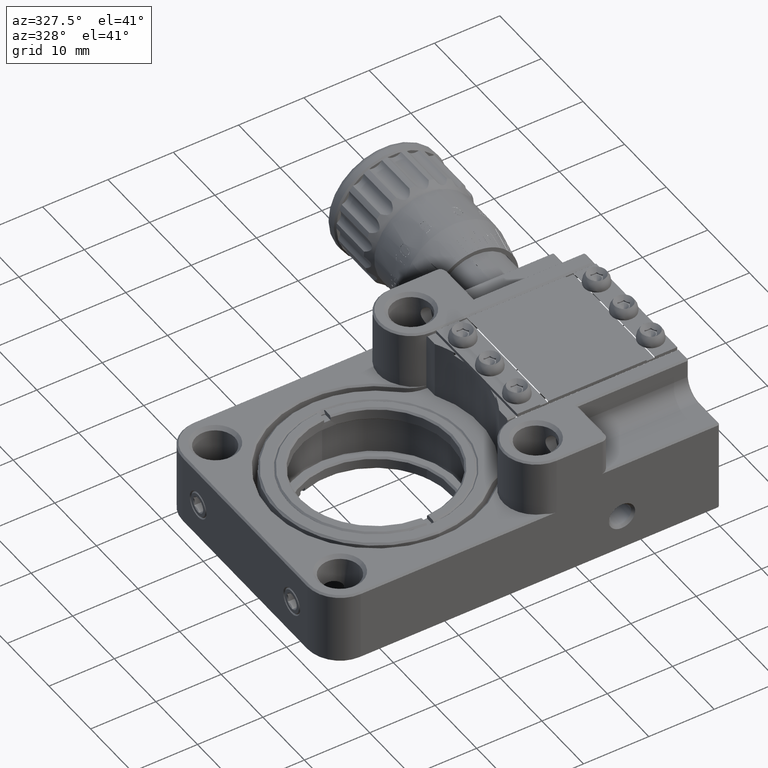
[diagram: clean part render]
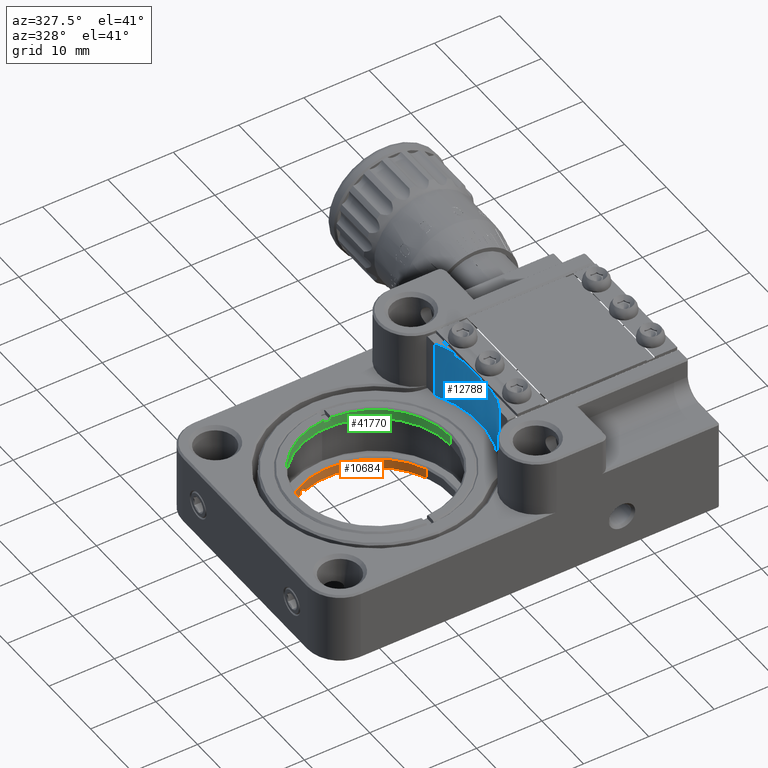
[diagram: same view with three faces highlighted in distinct colors, each labeled with its STEP entity id]
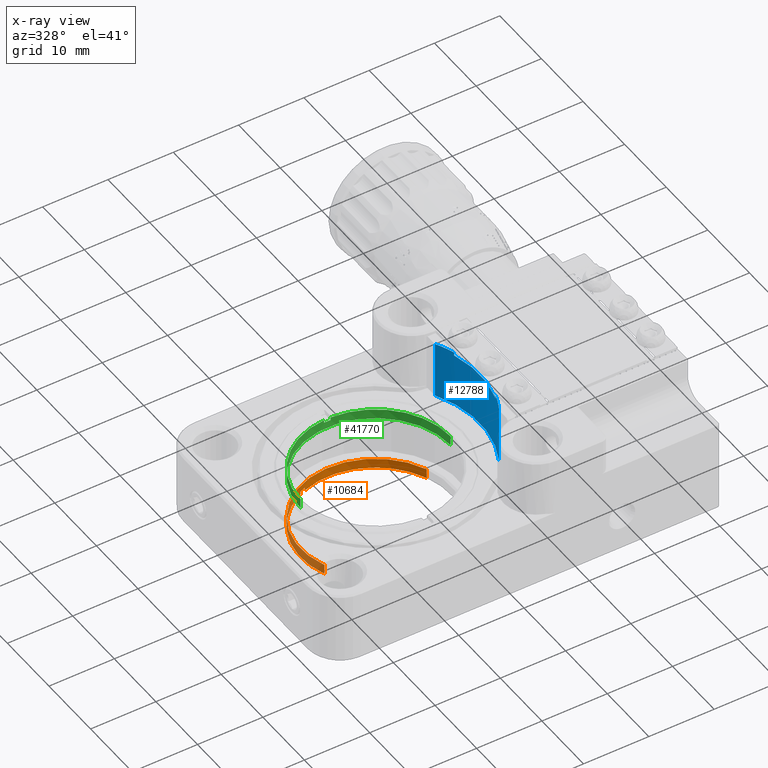
[diagram: x-ray of the same camera — body ghosted, the three highlighted faces saturated]
A machine part, auxiliary view with three faces highlighted in distinct colors.
The next image is the same camera in x-ray (body ghosted, the three faces saturated) — at least one of them is partly hidden behind the body in this view.
Their STEP definitions:

[orange] entity #10684 — the highlighted cylindrical surface (partial cylindrical patch) has radius 11.5045 mm, axis along (-0, 0, 1).
#2526 = DIRECTION ( 'NONE',  ( -0.000000000000000000, 0.000000000000000000, 1.000000000000000000 ) ) ;
#4275 = EDGE_CURVE ( 'NONE', #15417, #29431, #29823, .T. ) ;
#4463 = CIRCLE ( 'NONE', #37035, 11.50450000000014938 ) ;
#5706 = ORIENTED_EDGE ( 'NONE', *, *, #24415, .T. ) ;
#5871 = CIRCLE ( 'NONE', #43959, 11.50450000000014938 ) ;
#6357 = CARTESIAN_POINT ( 'NONE',  ( -1.230980756753038060E-15, 3.298665368134617755E-15, -4.668755170104023300 ) ) ;
#7726 = CARTESIAN_POINT ( 'NONE',  ( -4.843364236585100180, 10.43529314977640254, -4.218755170104023122 ) ) ;
#7945 = AXIS2_PLACEMENT_3D ( 'NONE', #6357, #13159, #46378 ) ;
#9455 = DIRECTION ( 'NONE',  ( 0.000000000000000000, 0.000000000000000000, -1.000000000000000000 ) ) ;
#9596 = LINE ( 'NONE', #33741, #18766 ) ;
#10684 = ADVANCED_FACE ( 'NONE', ( #14794 ), #15927, .F. ) ;
#11052 = CARTESIAN_POINT ( 'NONE',  ( 10.63593166459730988, 4.385256876856787223, -4.918755170104023300 ) ) ;
#11697 = DIRECTION ( 'NONE',  ( 0.000000000000000000, -0.000000000000000000, -1.000000000000000000 ) ) ;
#12628 = LINE ( 'NONE', #11052, #43101 ) ;
#12933 = CARTESIAN_POINT ( 'NONE',  ( -1.230980756753038060E-15, 3.298665368134617755E-15, -4.668755170104023300 ) ) ;
#13159 = DIRECTION ( 'NONE',  ( 0.000000000000000000, 0.000000000000000000, -1.000000000000000000 ) ) ;
#13316 = AXIS2_PLACEMENT_3D ( 'NONE', #43708, #21717, #47330 ) ;
#14009 = CARTESIAN_POINT ( 'NONE',  ( -3.918862375174605450, 10.81647067829632114, -4.918755170104023300 ) ) ;
#14754 = ORIENTED_EDGE ( 'NONE', *, *, #24070, .T. ) ;
#14794 = FACE_OUTER_BOUND ( 'NONE', #32754, .T. ) ;
#15417 = VERTEX_POINT ( 'NONE', #33582 ) ;
#15573 = DIRECTION ( 'NONE',  ( -0.9245018614105066090, -0.3811775285198597540, 0.000000000000000000 ) ) ;
#15731 = DIRECTION ( 'NONE',  ( 0.000000000000000000, 0.000000000000000000, -1.000000000000000000 ) ) ;
#15927 = CYLINDRICAL_SURFACE ( 'NONE', #25337, 11.50450000000014938 ) ;
#16379 = CIRCLE ( 'NONE', #13316, 11.50450000000014938 ) ;
#16454 = ORIENTED_EDGE ( 'NONE', *, *, #47049, .T. ) ;
#17765 = LINE ( 'NONE', #38456, #33911 ) ;
#18412 = CARTESIAN_POINT ( 'NONE',  ( 10.63593166459717132, 4.385256876856730379, -4.668755170104023300 ) ) ;
#18766 = VECTOR ( 'NONE', #11697, 1000.000000000000000 ) ;
#18903 = CARTESIAN_POINT ( 'NONE',  ( -10.63593166459731343, -4.385256876856780117, -4.668755170104023300 ) ) ;
#19613 = CARTESIAN_POINT ( 'NONE',  ( -1.230980756753038060E-15, 3.298665368134617755E-15, -4.218755170104023122 ) ) ;
#19768 = VERTEX_POINT ( 'NONE', #42944 ) ;
#19812 = ORIENTED_EDGE ( 'NONE', *, *, #42254, .F. ) ;
#21216 = VECTOR ( 'NONE', #43390, 1000.000000000000000 ) ;
#21717 = DIRECTION ( 'NONE',  ( -0.000000000000000000, -0.000000000000000000, 1.000000000000000000 ) ) ;
#21953 = EDGE_CURVE ( 'NONE', #26276, #25402, #36096, .T. ) ;
#23044 = ORIENTED_EDGE ( 'NONE', *, *, #39699, .T. ) ;
#24070 = EDGE_CURVE ( 'NONE', #15417, #42835, #5871, .T. ) ;
#24415 = EDGE_CURVE ( 'NONE', #42835, #19768, #12628, .T. ) ;
#25337 = AXIS2_PLACEMENT_3D ( 'NONE', #35742, #2526, #39229 ) ;
#25402 = VERTEX_POINT ( 'NONE', #26257 ) ;
#26257 = CARTESIAN_POINT ( 'NONE',  ( -4.843364236585100180, 10.43529314977640254, -4.668755170104024188 ) ) ;
#26276 = VERTEX_POINT ( 'NONE', #18903 ) ;
#28588 = ORIENTED_EDGE ( 'NONE', *, *, #45503, .F. ) ;
#29431 = VERTEX_POINT ( 'NONE', #31296 ) ;
#29823 = LINE ( 'NONE', #14009, #21216 ) ;
#30976 = DIRECTION ( 'NONE',  ( -0.9245018614105066090, -0.3811775285198597540, 0.000000000000000000 ) ) ;
#31069 = DIRECTION ( 'NONE',  ( -0.000000000000000000, 0.000000000000000000, 1.000000000000000000 ) ) ;
#31296 = CARTESIAN_POINT ( 'NONE',  ( -3.918862375174605450, 10.81647067829632114, -4.218755170104023122 ) ) ;
#31466 = CARTESIAN_POINT ( 'NONE',  ( -10.63593166459731343, -4.385256876856778341, -3.168755170104025076 ) ) ;
#32748 = DIRECTION ( 'NONE',  ( -0.000000000000000000, 0.000000000000000000, 1.000000000000000000 ) ) ;
#32754 = EDGE_LOOP ( 'NONE', ( #19812, #33827, #28588, #23044, #42032, #14754, #5706, #16454 ) ) ;
#33582 = CARTESIAN_POINT ( 'NONE',  ( -3.918862375174605450, 10.81647067829632114, -4.668755170104023300 ) ) ;
#33741 = CARTESIAN_POINT ( 'NONE',  ( -4.843364236585100180, 10.43529314977640254, -4.918755170104023300 ) ) ;
#33827 = ORIENTED_EDGE ( 'NONE', *, *, #21953, .T. ) ;
#33911 = VECTOR ( 'NONE', #31069, 1000.000000000000000 ) ;
#35742 = CARTESIAN_POINT ( 'NONE',  ( -1.230980756753038060E-15, 3.298665368134617755E-15, -4.918755170104023300 ) ) ;
#36096 = CIRCLE ( 'NONE', #7945, 11.50450000000014938 ) ;
#36798 = VERTEX_POINT ( 'NONE', #31466 ) ;
#37035 = AXIS2_PLACEMENT_3D ( 'NONE', #19613, #15731, #15573 ) ;
#38456 = CARTESIAN_POINT ( 'NONE',  ( -10.63593166459731343, -4.385256876856778341, -4.918755170104023300 ) ) ;
#39229 = DIRECTION ( 'NONE',  ( 0.9245018614105066090, 0.3811775285198597540, 0.000000000000000000 ) ) ;
#39699 = EDGE_CURVE ( 'NONE', #45082, #29431, #4463, .T. ) ;
#42032 = ORIENTED_EDGE ( 'NONE', *, *, #4275, .F. ) ;
#42254 = EDGE_CURVE ( 'NONE', #26276, #36798, #17765, .T. ) ;
#42835 = VERTEX_POINT ( 'NONE', #18412 ) ;
#42944 = CARTESIAN_POINT ( 'NONE',  ( 10.63593166459730988, 4.385256876856787223, -3.168755170104025076 ) ) ;
#43101 = VECTOR ( 'NONE', #32748, 1000.000000000000000 ) ;
#43390 = DIRECTION ( 'NONE',  ( -0.000000000000000000, 0.000000000000000000, 1.000000000000000000 ) ) ;
#43708 = CARTESIAN_POINT ( 'NONE',  ( -1.230980756753038060E-15, 3.298665368134617755E-15, -3.168755170104025076 ) ) ;
#43959 = AXIS2_PLACEMENT_3D ( 'NONE', #12933, #9455, #30976 ) ;
#45082 = VERTEX_POINT ( 'NONE', #7726 ) ;
#45503 = EDGE_CURVE ( 'NONE', #45082, #25402, #9596, .T. ) ;
#46378 = DIRECTION ( 'NONE',  ( -0.9245018614105066090, -0.3811775285198597540, 0.000000000000000000 ) ) ;
#47049 = EDGE_CURVE ( 'NONE', #19768, #36798, #16379, .T. ) ;
#47330 = DIRECTION ( 'NONE',  ( -0.9245018614105066090, -0.3811775285198597540, 0.000000000000000000 ) ) ;

[blue] entity #12788 — the highlighted cylindrical surface (partial cylindrical patch) has radius 16 mm, axis along (0, 0, 1).
#114 = CARTESIAN_POINT ( 'NONE',  ( 14.00000000000000178, -7.745966692414834931, 2.828161756884870037 ) ) ;
#578 = CARTESIAN_POINT ( 'NONE',  ( 1.463672932855430986E-15, 5.017193349869462425E-16, 14.25172068229178279 ) ) ;
#1361 = CYLINDRICAL_SURFACE ( 'NONE', #4246, 16.00000000000000000 ) ;
#1773 = DIRECTION ( 'NONE',  ( 0.000000000000000000, 0.000000000000000000, 1.000000000000000000 ) ) ;
#2874 = CARTESIAN_POINT ( 'NONE',  ( 1.463672932855430986E-15, 5.017193349869462425E-16, -51.00311331364724765 ) ) ;
#2946 = ORIENTED_EDGE ( 'NONE', *, *, #38284, .T. ) ;
#3287 = CARTESIAN_POINT ( 'NONE',  ( 15.19868415357066560, 5.000000000000000888, -51.00311331364724765 ) ) ;
#3438 = DIRECTION ( 'NONE',  ( -0.000000000000000000, -0.000000000000000000, -1.000000000000000000 ) ) ;
#3751 = EDGE_CURVE ( 'NONE', #44754, #15186, #13797, .T. ) ;
#4017 = EDGE_CURVE ( 'NONE', #39874, #12204, #39059, .T. ) ;
#4119 = CARTESIAN_POINT ( 'NONE',  ( 15.19868415357066560, -4.999999999999999112, 14.25172068229178457 ) ) ;
#4246 = AXIS2_PLACEMENT_3D ( 'NONE', #2874, #13995, #17353 ) ;
#5466 = CIRCLE ( 'NONE', #8328, 16.00000000000000000 ) ;
#6745 = DIRECTION ( 'NONE',  ( 1.110223024625156294E-16, 1.000000000000000000, 0.000000000000000000 ) ) ;
#6769 = VERTEX_POINT ( 'NONE', #8199 ) ;
#6777 = CARTESIAN_POINT ( 'NONE',  ( 15.19868415357066560, -4.999999999999999112, -51.00311331364724765 ) ) ;
#7300 = VECTOR ( 'NONE', #26022, 1000.000000000000000 ) ;
#7586 = EDGE_CURVE ( 'NONE', #44712, #44754, #31303, .T. ) ;
#8199 = CARTESIAN_POINT ( 'NONE',  ( 14.00000000000000178, -7.745966692414832266, 5.451720682291782083 ) ) ;
#8328 = AXIS2_PLACEMENT_3D ( 'NONE', #33384, #15431, #33843 ) ;
#8606 = EDGE_CURVE ( 'NONE', #39742, #12204, #12216, .T. ) ;
#8781 = ORIENTED_EDGE ( 'NONE', *, *, #3751, .T. ) ;
#8950 = CARTESIAN_POINT ( 'NONE',  ( 15.19868415357066560, 5.000000000000000888, 13.75172068229178457 ) ) ;
#10571 = CARTESIAN_POINT ( 'NONE',  ( 1.463672932855430986E-15, 5.017193349869462425E-16, 5.451720682291782083 ) ) ;
#11068 = AXIS2_PLACEMENT_3D ( 'NONE', #10571, #14214, #6745 ) ;
#11591 = CARTESIAN_POINT ( 'NONE',  ( 14.00000000000000178, -7.745966692414834931, 14.25172068229178279 ) ) ;
#12089 = DIRECTION ( 'NONE',  ( 1.110223024625156294E-16, 1.000000000000000000, 0.000000000000000000 ) ) ;
#12204 = VERTEX_POINT ( 'NONE', #12436 ) ;
#12216 = LINE ( 'NONE', #46405, #16806 ) ;
#12436 = CARTESIAN_POINT ( 'NONE',  ( 14.00000000000000178, 7.745966692414833155, 14.25172068229178279 ) ) ;
#12788 = ADVANCED_FACE ( 'NONE', ( #13301 ), #1361, .F. ) ;
#13301 = FACE_OUTER_BOUND ( 'NONE', #37808, .T. ) ;
#13797 = LINE ( 'NONE', #6777, #33396 ) ;
#13995 = DIRECTION ( 'NONE',  ( 0.000000000000000000, 0.000000000000000000, 1.000000000000000000 ) ) ;
#14214 = DIRECTION ( 'NONE',  ( -0.000000000000000000, -0.000000000000000000, -1.000000000000000000 ) ) ;
#15186 = VERTEX_POINT ( 'NONE', #28800 ) ;
#15431 = DIRECTION ( 'NONE',  ( -0.000000000000000000, -0.000000000000000000, 1.000000000000000000 ) ) ;
#16806 = VECTOR ( 'NONE', #24476, 1000.000000000000000 ) ;
#16963 = CIRCLE ( 'NONE', #11068, 16.00000000000000000 ) ;
#17353 = DIRECTION ( 'NONE',  ( 1.110223024625156294E-16, 1.000000000000000000, 0.000000000000000000 ) ) ;
#17520 = ORIENTED_EDGE ( 'NONE', *, *, #37612, .T. ) ;
#18233 = LINE ( 'NONE', #3287, #25201 ) ;
#19206 = DIRECTION ( 'NONE',  ( 0.000000000000000000, 0.000000000000000000, 1.000000000000000000 ) ) ;
#20689 = ORIENTED_EDGE ( 'NONE', *, *, #42763, .T. ) ;
#23650 = CARTESIAN_POINT ( 'NONE',  ( 15.19868415357066560, 5.000000000000000888, 14.25172068229178457 ) ) ;
#24476 = DIRECTION ( 'NONE',  ( 0.000000000000000000, 0.000000000000000000, 1.000000000000000000 ) ) ;
#24595 = VERTEX_POINT ( 'NONE', #8950 ) ;
#25201 = VECTOR ( 'NONE', #43316, 1000.000000000000000 ) ;
#26022 = DIRECTION ( 'NONE',  ( 0.000000000000000000, 0.000000000000000000, 1.000000000000000000 ) ) ;
#26231 = ORIENTED_EDGE ( 'NONE', *, *, #45046, .T. ) ;
#26547 = CARTESIAN_POINT ( 'NONE',  ( 14.00000000000000178, 7.745966692414833155, 5.451720682291782083 ) ) ;
#26714 = CARTESIAN_POINT ( 'NONE',  ( 1.463672932855430986E-15, 5.017193349869462425E-16, 14.25172068229178279 ) ) ;
#28800 = CARTESIAN_POINT ( 'NONE',  ( 15.19868415357066560, -4.999999999999999112, 13.75172068229178457 ) ) ;
#31303 = CIRCLE ( 'NONE', #31793, 16.00000000000000000 ) ;
#31793 = AXIS2_PLACEMENT_3D ( 'NONE', #578, #19206, #41380 ) ;
#33353 = ORIENTED_EDGE ( 'NONE', *, *, #4017, .T. ) ;
#33384 = CARTESIAN_POINT ( 'NONE',  ( 1.463672932855430986E-15, 5.017193349869462425E-16, 13.75172068229178457 ) ) ;
#33396 = VECTOR ( 'NONE', #3438, 1000.000000000000000 ) ;
#33843 = DIRECTION ( 'NONE',  ( -1.110223024625156294E-16, -1.000000000000000000, 0.000000000000000000 ) ) ;
#35418 = LINE ( 'NONE', #114, #7300 ) ;
#35896 = AXIS2_PLACEMENT_3D ( 'NONE', #26714, #1773, #12089 ) ;
#37612 = EDGE_CURVE ( 'NONE', #39742, #6769, #16963, .T. ) ;
#37808 = EDGE_LOOP ( 'NONE', ( #46506, #8781, #2946, #20689, #33353, #41178, #17520, #26231 ) ) ;
#38284 = EDGE_CURVE ( 'NONE', #15186, #24595, #5466, .T. ) ;
#39059 = CIRCLE ( 'NONE', #35896, 16.00000000000000000 ) ;
#39742 = VERTEX_POINT ( 'NONE', #26547 ) ;
#39874 = VERTEX_POINT ( 'NONE', #23650 ) ;
#41178 = ORIENTED_EDGE ( 'NONE', *, *, #8606, .F. ) ;
#41380 = DIRECTION ( 'NONE',  ( 1.110223024625156294E-16, 1.000000000000000000, 0.000000000000000000 ) ) ;
#42763 = EDGE_CURVE ( 'NONE', #24595, #39874, #18233, .T. ) ;
#43316 = DIRECTION ( 'NONE',  ( 0.000000000000000000, 0.000000000000000000, 1.000000000000000000 ) ) ;
#44712 = VERTEX_POINT ( 'NONE', #11591 ) ;
#44754 = VERTEX_POINT ( 'NONE', #4119 ) ;
#45046 = EDGE_CURVE ( 'NONE', #6769, #44712, #35418, .T. ) ;
#46405 = CARTESIAN_POINT ( 'NONE',  ( 14.00000000000000178, 7.745966692414833155, 2.828161756884870037 ) ) ;
#46506 = ORIENTED_EDGE ( 'NONE', *, *, #7586, .T. ) ;

[green] entity #41770 — the highlighted cylindrical surface (partial cylindrical patch) has radius 11.5045 mm, axis along (0, 0, -1).
#336 = DIRECTION ( 'NONE',  ( 0.000000000000000000, 0.000000000000000000, -1.000000000000000000 ) ) ;
#776 = CARTESIAN_POINT ( 'NONE',  ( -11.50438015570719230, -0.05251174126350974941, 5.269348496278253968 ) ) ;
#1641 = VECTOR ( 'NONE', #35976, 1000.000000000000000 ) ;
#1794 = EDGE_CURVE ( 'NONE', #10786, #37054, #6785, .T. ) ;
#2204 = CARTESIAN_POINT ( 'NONE',  ( -0.5524569150333785705, 11.49122759356175294, 4.819348496278253791 ) ) ;
#3421 = VERTEX_POINT ( 'NONE', #2204 ) ;
#3447 = CARTESIAN_POINT ( 'NONE',  ( 11.50438015570734684, 0.05251174126350940941, 5.269348496278253968 ) ) ;
#3607 = CARTESIAN_POINT ( 'NONE',  ( -0.5524569150333785705, 11.49122759356175294, 5.519348496278253968 ) ) ;
#4584 = DIRECTION ( 'NONE',  ( 0.9999895828334298686, 0.004564452280717044320, 0.000000000000000000 ) ) ;
#4975 = VERTEX_POINT ( 'NONE', #26783 ) ;
#5024 = EDGE_CURVE ( 'NONE', #18680, #29384, #40077, .T. ) ;
#5489 = CARTESIAN_POINT ( 'NONE',  ( -11.50438015570734862, -0.05251174126351045718, 3.769348496278255745 ) ) ;
#6785 = LINE ( 'NONE', #43145, #1641 ) ;
#8208 = DIRECTION ( 'NONE',  ( 0.9999895828334298686, 0.004564452280717044320, 0.000000000000000000 ) ) ;
#8544 = CARTESIAN_POINT ( 'NONE',  ( 1.103288724202410260E-16, -5.235699704587580671E-16, 5.269348496278253968 ) ) ;
#10051 = EDGE_CURVE ( 'NONE', #4975, #3421, #23576, .T. ) ;
#10786 = VERTEX_POINT ( 'NONE', #776 ) ;
#10966 = ORIENTED_EDGE ( 'NONE', *, *, #23133, .T. ) ;
#13525 = AXIS2_PLACEMENT_3D ( 'NONE', #28396, #21185, #46799 ) ;
#13582 = CARTESIAN_POINT ( 'NONE',  ( 0.4475326678000630665, 11.49579204584240877, 5.269348496278254856 ) ) ;
#15075 = CARTESIAN_POINT ( 'NONE',  ( 1.103288724202410260E-16, -5.235699704587580671E-16, 3.769348496278255745 ) ) ;
#15408 = FACE_OUTER_BOUND ( 'NONE', #39356, .T. ) ;
#16934 = DIRECTION ( 'NONE',  ( -0.000000000000000000, -0.000000000000000000, 1.000000000000000000 ) ) ;
#18602 = LINE ( 'NONE', #26420, #31265 ) ;
#18680 = VERTEX_POINT ( 'NONE', #3447 ) ;
#19118 = CARTESIAN_POINT ( 'NONE',  ( 1.103288724202410260E-16, -5.235699704587580671E-16, 5.269348496278253968 ) ) ;
#19124 = ORIENTED_EDGE ( 'NONE', *, *, #26085, .F. ) ;
#19571 = AXIS2_PLACEMENT_3D ( 'NONE', #8544, #26486, #8208 ) ;
#21185 = DIRECTION ( 'NONE',  ( 0.000000000000000000, 0.000000000000000000, 1.000000000000000000 ) ) ;
#22135 = DIRECTION ( 'NONE',  ( 0.000000000000000000, 0.000000000000000000, -1.000000000000000000 ) ) ;
#22737 = EDGE_CURVE ( 'NONE', #18680, #42784, #18602, .T. ) ;
#23133 = EDGE_CURVE ( 'NONE', #29847, #10786, #38815, .T. ) ;
#23576 = CIRCLE ( 'NONE', #13525, 11.50450000000015294 ) ;
#25793 = CARTESIAN_POINT ( 'NONE',  ( 1.103288724202410260E-16, -5.235699704587580671E-16, 5.519348496278253968 ) ) ;
#26085 = EDGE_CURVE ( 'NONE', #29847, #3421, #36744, .T. ) ;
#26420 = CARTESIAN_POINT ( 'NONE',  ( 11.50438015570734684, 0.05251174126351081800, 5.519348496278253968 ) ) ;
#26486 = DIRECTION ( 'NONE',  ( 0.000000000000000000, 0.000000000000000000, 1.000000000000000000 ) ) ;
#26534 = DIRECTION ( 'NONE',  ( 0.000000000000000000, 0.000000000000000000, 1.000000000000000000 ) ) ;
#26783 = CARTESIAN_POINT ( 'NONE',  ( 0.4475326678000630665, 11.49579204584240877, 4.819348496278253791 ) ) ;
#27909 = CARTESIAN_POINT ( 'NONE',  ( 0.4475326678000630665, 11.49579204584240877, 5.519348496278253968 ) ) ;
#28396 = CARTESIAN_POINT ( 'NONE',  ( 1.103288724202410260E-16, -5.235699704587580671E-16, 4.819348496278253791 ) ) ;
#28603 = ORIENTED_EDGE ( 'NONE', *, *, #37002, .T. ) ;
#29152 = ORIENTED_EDGE ( 'NONE', *, *, #5024, .T. ) ;
#29384 = VERTEX_POINT ( 'NONE', #13582 ) ;
#29847 = VERTEX_POINT ( 'NONE', #30770 ) ;
#30728 = DIRECTION ( 'NONE',  ( 0.9999895828334298686, 0.004564452280717044320, 0.000000000000000000 ) ) ;
#30770 = CARTESIAN_POINT ( 'NONE',  ( -0.5524569150333785705, 11.49122759356175294, 5.269348496278253968 ) ) ;
#31265 = VECTOR ( 'NONE', #40715, 1000.000000000000000 ) ;
#32303 = CARTESIAN_POINT ( 'NONE',  ( 11.50438015570734862, 0.05251174126351081800, 3.769348496278255745 ) ) ;
#32411 = VECTOR ( 'NONE', #16934, 1000.000000000000000 ) ;
#33719 = AXIS2_PLACEMENT_3D ( 'NONE', #25793, #336, #44207 ) ;
#34249 = DIRECTION ( 'NONE',  ( -0.000000000000000000, -0.000000000000000000, -1.000000000000000000 ) ) ;
#35976 = DIRECTION ( 'NONE',  ( 0.000000000000000000, 0.000000000000000000, -1.000000000000000000 ) ) ;
#36293 = AXIS2_PLACEMENT_3D ( 'NONE', #15075, #34249, #30728 ) ;
#36744 = LINE ( 'NONE', #3607, #44134 ) ;
#36877 = EDGE_CURVE ( 'NONE', #4975, #29384, #40983, .T. ) ;
#37002 = EDGE_CURVE ( 'NONE', #37054, #42784, #43223, .T. ) ;
#37054 = VERTEX_POINT ( 'NONE', #5489 ) ;
#38431 = ORIENTED_EDGE ( 'NONE', *, *, #22737, .F. ) ;
#38815 = CIRCLE ( 'NONE', #41774, 11.50450000000015294 ) ;
#39356 = EDGE_LOOP ( 'NONE', ( #38431, #29152, #40129, #41407, #19124, #10966, #40298, #28603 ) ) ;
#40077 = CIRCLE ( 'NONE', #19571, 11.50450000000015294 ) ;
#40129 = ORIENTED_EDGE ( 'NONE', *, *, #36877, .F. ) ;
#40298 = ORIENTED_EDGE ( 'NONE', *, *, #1794, .T. ) ;
#40715 = DIRECTION ( 'NONE',  ( 0.000000000000000000, 0.000000000000000000, -1.000000000000000000 ) ) ;
#40983 = LINE ( 'NONE', #27909, #32411 ) ;
#41407 = ORIENTED_EDGE ( 'NONE', *, *, #10051, .T. ) ;
#41770 = ADVANCED_FACE ( 'NONE', ( #15408 ), #45860, .F. ) ;
#41774 = AXIS2_PLACEMENT_3D ( 'NONE', #19118, #26534, #4584 ) ;
#42784 = VERTEX_POINT ( 'NONE', #32303 ) ;
#43145 = CARTESIAN_POINT ( 'NONE',  ( -11.50438015570734684, -0.05251174126351045024, 5.519348496278253968 ) ) ;
#43223 = CIRCLE ( 'NONE', #36293, 11.50450000000015294 ) ;
#44134 = VECTOR ( 'NONE', #22135, 1000.000000000000000 ) ;
#44207 = DIRECTION ( 'NONE',  ( -0.9999895828334298686, -0.004564452280717044320, 0.000000000000000000 ) ) ;
#45860 = CYLINDRICAL_SURFACE ( 'NONE', #33719, 11.50450000000015294 ) ;
#46799 = DIRECTION ( 'NONE',  ( 0.9999895828334298686, 0.004564452280717044320, 0.000000000000000000 ) ) ;